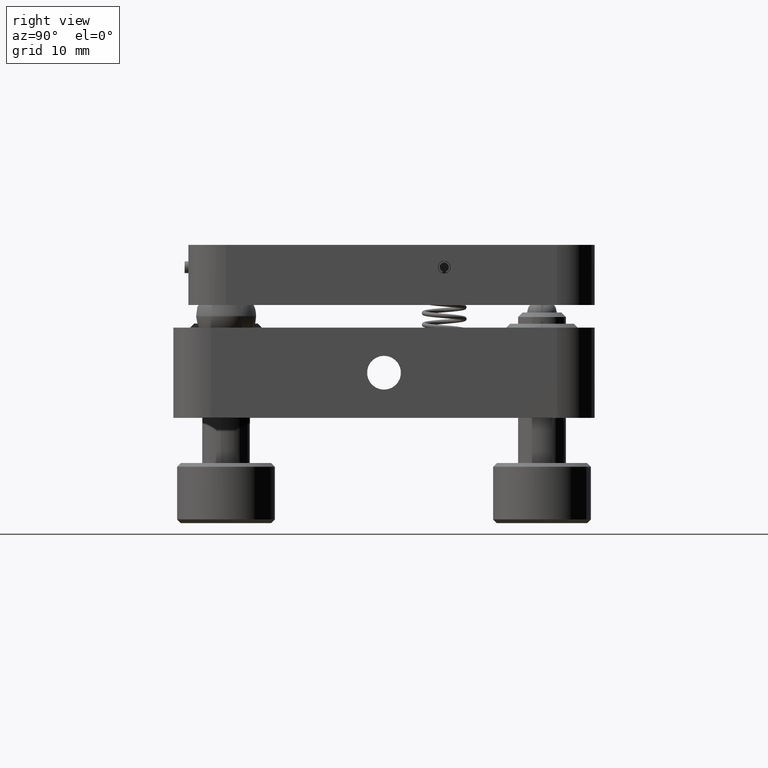
[diagram: clean part render]
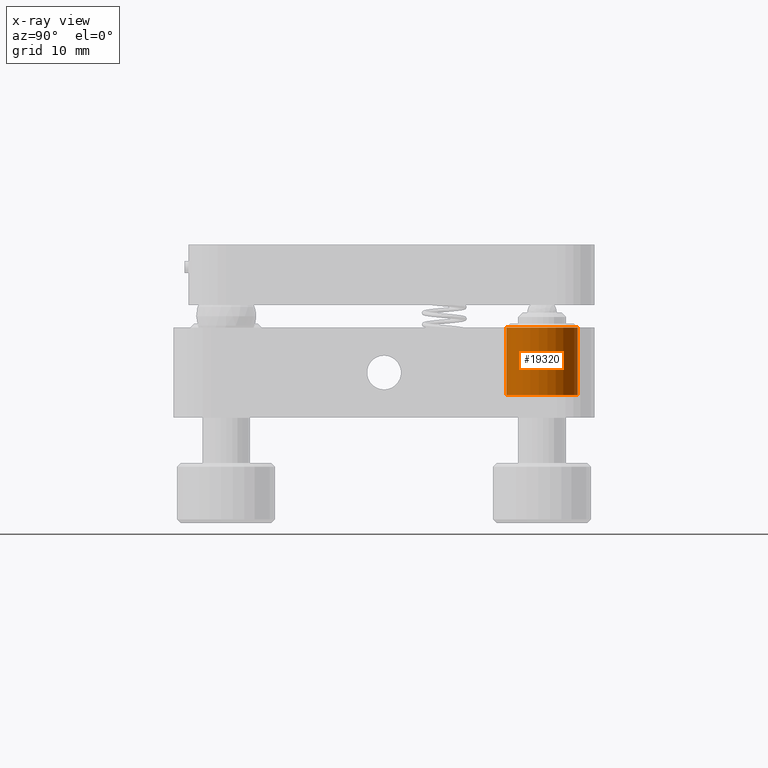
[diagram: x-ray — body ghosted, one internal face saturated and labeled with its STEP entity id]
A machine part, right view, then the same camera in x-ray: the body is ghosted and one INTERNAL B-rep face — a face not visible from any outside direction — is saturated and labeled: STEP entity #19320.
In plain terms, the highlighted cylindrical surface (edge-blend (fillet) strip) has radius 4.75 mm, axis along (-0, 0, 1).
Its self-contained STEP definition (entity closure, byte-faithful):
#251 = EDGE_CURVE ( 'NONE', #9911, #6253, #19182, .T. ) ;
#1667 = EDGE_CURVE ( 'NONE', #12337, #13271, #9834, .T. ) ;
#2116 = DIRECTION ( 'NONE',  ( -1.112553447320503200E-017, 3.799771543963417300E-017, 1.000000000000000000 ) ) ;
#3382 = DIRECTION ( 'NONE',  ( 0.03219418429313340000, -0.9994816328966229500, 0.0000000000000000000 ) ) ;
#3580 = DIRECTION ( 'NONE',  ( -1.112553447320503200E-017, 3.799771543963417300E-017, 1.000000000000000000 ) ) ;
#5715 = VECTOR ( 'NONE', #3580, 1000.000000000000000 ) ;
#6253 = VERTEX_POINT ( 'NONE', #17270 ) ;
#6492 = CARTESIAN_POINT ( 'NONE',  ( 20.99999999999998600, 20.99999999999998200, -12.49842712000000600 ) ) ;
#6746 = ORIENTED_EDGE ( 'NONE', *, *, #12580, .T. ) ;
#7732 = ORIENTED_EDGE ( 'NONE', *, *, #251, .T. ) ;
#8428 = FACE_OUTER_BOUND ( 'NONE', #18338, .T. ) ;
#9834 = LINE ( 'NONE', #17659, #5715 ) ;
#9911 = VERTEX_POINT ( 'NONE', #17022 ) ;
#10668 = DIRECTION ( 'NONE',  ( -0.03219418429313340000, 0.9994816328966229500, 0.0000000000000000000 ) ) ;
#10721 = CIRCLE ( 'NONE', #19358, 4.749999999999999100 ) ;
#12337 = VERTEX_POINT ( 'NONE', #14223 ) ;
#12580 = EDGE_CURVE ( 'NONE', #12337, #9911, #10721, .T. ) ;
#13068 = CARTESIAN_POINT ( 'NONE',  ( 20.99999999999998600, 20.99999999999998200, -11.99842712000000200 ) ) ;
#13266 = DIRECTION ( 'NONE',  ( -0.03219418429313340000, 0.9994816328966229500, 0.0000000000000000000 ) ) ;
#13271 = VERTEX_POINT ( 'NONE', #17618 ) ;
#13890 = ORIENTED_EDGE ( 'NONE', *, *, #17784, .T. ) ;
#13979 = ORIENTED_EDGE ( 'NONE', *, *, #1667, .F. ) ;
#14017 = CYLINDRICAL_SURFACE ( 'NONE', #17099, 4.749999999999999100 ) ;
#14223 = CARTESIAN_POINT ( 'NONE',  ( 21.15292237539237200, 16.25246224374102200, -11.99842712000000200 ) ) ;
#15318 = DIRECTION ( 'NONE',  ( 1.112553447320503200E-017, -3.799771543963417300E-017, -1.000000000000000000 ) ) ;
#16177 = CARTESIAN_POINT ( 'NONE',  ( 20.84707762460760700, 25.74753775625893900, -12.49842712000000600 ) ) ;
#16210 = VECTOR ( 'NONE', #2116, 1000.000000000000000 ) ;
#17022 = CARTESIAN_POINT ( 'NONE',  ( 20.84707762460760700, 25.74753775625893900, -11.99842712000000200 ) ) ;
#17099 = AXIS2_PLACEMENT_3D ( 'NONE', #6492, #18856, #3382 ) ;
#17270 = CARTESIAN_POINT ( 'NONE',  ( 20.84707762460760700, 25.74753775625893900, -2.998427120000002800 ) ) ;
#17338 = AXIS2_PLACEMENT_3D ( 'NONE', #18386, #15318, #10668 ) ;
#17618 = CARTESIAN_POINT ( 'NONE',  ( 21.15292237539237200, 16.25246224374102200, -2.998427120000002800 ) ) ;
#17659 = CARTESIAN_POINT ( 'NONE',  ( 21.15292237539237200, 16.25246224374102200, -12.49842712000000600 ) ) ;
#17784 = EDGE_CURVE ( 'NONE', #6253, #13271, #19439, .T. ) ;
#18338 = EDGE_LOOP ( 'NONE', ( #6746, #7732, #13890, #13979 ) ) ;
#18386 = CARTESIAN_POINT ( 'NONE',  ( 20.99999999999998600, 20.99999999999998200, -2.998427120000002800 ) ) ;
#18856 = DIRECTION ( 'NONE',  ( -1.112553447320503200E-017, 3.799771543963417300E-017, 1.000000000000000000 ) ) ;
#19182 = LINE ( 'NONE', #16177, #16210 ) ;
#19320 = ADVANCED_FACE ( 'NONE', ( #8428 ), #14017, .T. ) ;
#19358 = AXIS2_PLACEMENT_3D ( 'NONE', #13068, #19368, #13266 ) ;
#19368 = DIRECTION ( 'NONE',  ( -1.112553447320503200E-017, 3.799771543963417300E-017, 1.000000000000000000 ) ) ;
#19439 = CIRCLE ( 'NONE', #17338, 4.749999999999999100 ) ;